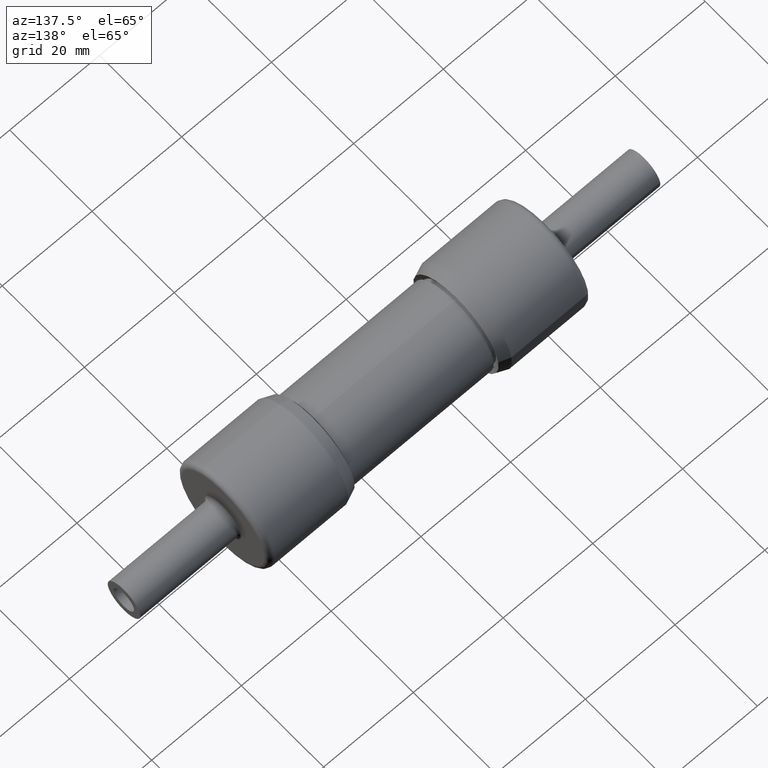
[diagram: clean part render]
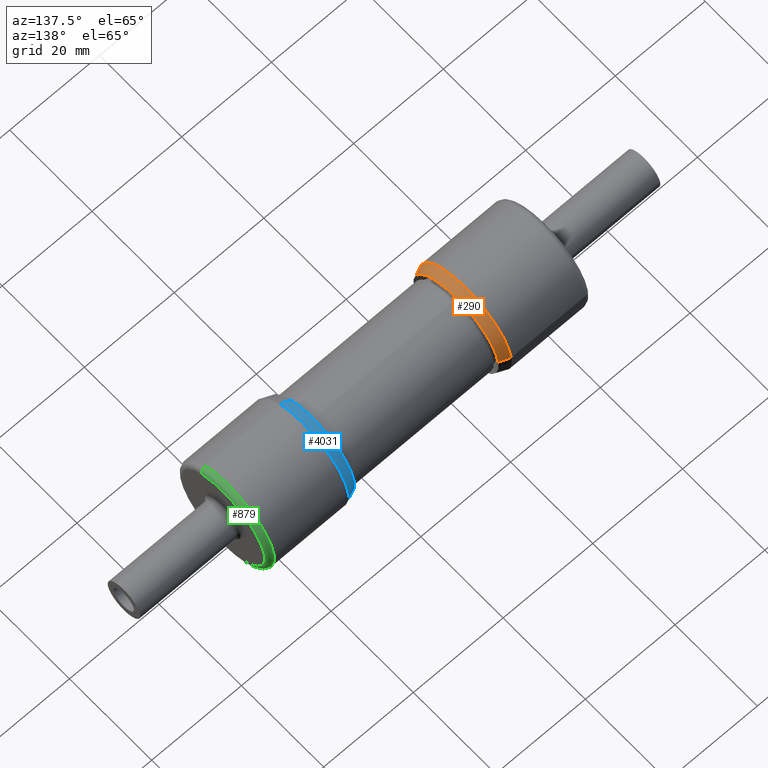
[diagram: same view with three faces highlighted in distinct colors, each labeled with its STEP entity id]
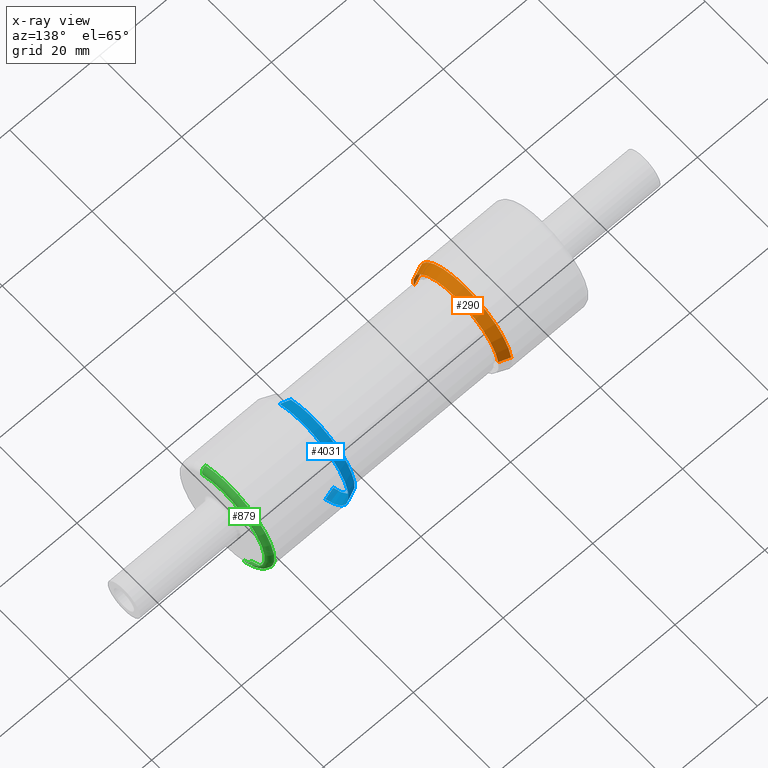
[diagram: x-ray of the same camera — body ghosted, the three highlighted faces saturated]
A machine part, auxiliary view with three faces highlighted in distinct colors.
The next image is the same camera in x-ray (body ghosted, the three faces saturated) — at least one of them is partly hidden behind the body in this view.
Their STEP definitions:

[orange] entity #290 — the highlighted conical surface has half-angle 22 deg.
#123 = VERTEX_POINT ( 'NONE', #4297 ) ;
#270 = DIRECTION ( 'NONE',  ( -1.000000000000000000, 8.586881206085282632E-17, -8.326672684688819499E-17 ) ) ;
#290 = ADVANCED_FACE ( 'NONE', ( #3023 ), #460, .T. ) ;
#340 = CARTESIAN_POINT ( 'NONE',  ( 0.4594999999999999640, 6.156793824763045811E-17, -5.970224314921710951E-17 ) ) ;
#417 = EDGE_LOOP ( 'NONE', ( #5993, #544, #3651, #2976 ) ) ;
#460 = CONICAL_SURFACE ( 'NONE', #4481, 0.4430000000000017257, 0.3839724354387570870 ) ;
#544 = ORIENTED_EDGE ( 'NONE', *, *, #4771, .T. ) ;
#688 = AXIS2_PLACEMENT_3D ( 'NONE', #1757, #4513, #6200 ) ;
#943 = LINE ( 'NONE', #5976, #2253 ) ;
#1020 = CIRCLE ( 'NONE', #688, 0.4422718385456696488 ) ;
#1407 = DIRECTION ( 'NONE',  ( 0.000000000000000000, 0.9900963576248625886, 0.1403894676176964951 ) ) ;
#1423 = DIRECTION ( 'NONE',  ( -1.000000000000000000, 8.586881206085282632E-17, -8.326672684688819499E-17 ) ) ;
#1468 = CARTESIAN_POINT ( 'NONE',  ( 0.5448230498612298689, 0.4044813424014652159, 0.05735292316118995731 ) ) ;
#1541 = CARTESIAN_POINT ( 'NONE',  ( 0.5448230498612298689, -0.4044813424014649383, -0.05735292316119009609 ) ) ;
#1551 = DIRECTION ( 'NONE',  ( -0.9271838545667852038, 0.3708966236833577956, 0.05259082021573947135 ) ) ;
#1757 = CARTESIAN_POINT ( 'NONE',  ( 0.4613022628427819183, 6.141318007829929175E-17, -5.955217462138090019E-17 ) ) ;
#2053 = VECTOR ( 'NONE', #3238, 39.37007874015748143 ) ;
#2253 = VECTOR ( 'NONE', #1551, 39.37007874015748143 ) ;
#2260 = CARTESIAN_POINT ( 'NONE',  ( 0.4613022628427819183, 0.4378917364241188270, 0.06209030795572631489 ) ) ;
#2497 = VERTEX_POINT ( 'NONE', #1541 ) ;
#2541 = EDGE_CURVE ( 'NONE', #2497, #123, #3675, .T. ) ;
#2577 = CIRCLE ( 'NONE', #6595, 0.4085272501878235429 ) ;
#2955 = EDGE_CURVE ( 'NONE', #3953, #123, #1020, .T. ) ;
#2976 = ORIENTED_EDGE ( 'NONE', *, *, #2955, .T. ) ;
#3023 = FACE_OUTER_BOUND ( 'NONE', #417, .T. ) ;
#3238 = DIRECTION ( 'NONE',  ( -0.9271838545667852038, -0.3708966236833576846, -0.05259082021573967952 ) ) ;
#3651 = ORIENTED_EDGE ( 'NONE', *, *, #6718, .T. ) ;
#3675 = LINE ( 'NONE', #7029, #2053 ) ;
#3953 = VERTEX_POINT ( 'NONE', #2260 ) ;
#4297 = CARTESIAN_POINT ( 'NONE',  ( 0.4613022628427819183, -0.4378917364241187160, -0.06209030795572648836 ) ) ;
#4481 = AXIS2_PLACEMENT_3D ( 'NONE', #340, #270, #1407 ) ;
#4513 = DIRECTION ( 'NONE',  ( 1.000000000000000000, -8.586881206085282632E-17, 8.326672684688819499E-17 ) ) ;
#4771 = EDGE_CURVE ( 'NONE', #2497, #5410, #2577, .T. ) ;
#5410 = VERTEX_POINT ( 'NONE', #1468 ) ;
#5976 = CARTESIAN_POINT ( 'NONE',  ( 0.4594999999999999640, 0.4386126864278159232, 0.06219253415463973228 ) ) ;
#5993 = ORIENTED_EDGE ( 'NONE', *, *, #2541, .F. ) ;
#6200 = DIRECTION ( 'NONE',  ( 0.000000000000000000, -0.9900963576248625886, -0.1403894676176964951 ) ) ;
#6210 = CARTESIAN_POINT ( 'NONE',  ( 0.5448230498612298689, 5.424134931463773017E-17, -5.259767206267874289E-17 ) ) ;
#6595 = AXIS2_PLACEMENT_3D ( 'NONE', #6210, #1423, #6839 ) ;
#6718 = EDGE_CURVE ( 'NONE', #5410, #3953, #943, .T. ) ;
#6839 = DIRECTION ( 'NONE',  ( 0.000000000000000000, 0.9900963576248625886, 0.1403894676176965228 ) ) ;
#7029 = CARTESIAN_POINT ( 'NONE',  ( 0.4594999999999999640, -0.4386126864278157567, -0.06219253415463990575 ) ) ;

[blue] entity #4031 — the highlighted conical surface has half-angle 22 deg.
#195 = CARTESIAN_POINT ( 'NONE',  ( 1.893499999999999961, 0.2194269814759292891, -0.3848386672364976224 ) ) ;
#307 = CARTESIAN_POINT ( 'NONE',  ( 1.893499999999999961, -3.990247870078447428E-17, -4.654610030740994808E-17 ) ) ;
#408 = FACE_OUTER_BOUND ( 'NONE', #7021, .T. ) ;
#602 = LINE ( 'NONE', #1165, #2519 ) ;
#790 = VERTEX_POINT ( 'NONE', #2236 ) ;
#829 = ORIENTED_EDGE ( 'NONE', *, *, #4075, .T. ) ;
#839 = VERTEX_POINT ( 'NONE', #2128 ) ;
#856 = CARTESIAN_POINT ( 'NONE',  ( 1.808176950138770112, -0.2023519218044595447, 0.3548918340678839378 ) ) ;
#1165 = CARTESIAN_POINT ( 'NONE',  ( 1.893499999999999961, -0.2194269814759293169, 0.3848386672364975669 ) ) ;
#1213 = VERTEX_POINT ( 'NONE', #2212 ) ;
#1508 = DIRECTION ( 'NONE',  ( 0.000000000000000000, 0.4953204999456624624, -0.8687103097889301573 ) ) ;
#1936 = VECTOR ( 'NONE', #4573, 39.37007874015748143 ) ;
#2101 = AXIS2_PLACEMENT_3D ( 'NONE', #4119, #6888, #6295 ) ;
#2128 = CARTESIAN_POINT ( 'NONE',  ( 1.891697737157218340, -0.2190663081803284062, 0.3842061058739283941 ) ) ;
#2212 = CARTESIAN_POINT ( 'NONE',  ( 1.891697737157218340, 0.2190663081803283785, -0.3842061058739285051 ) ) ;
#2236 = CARTESIAN_POINT ( 'NONE',  ( 1.808176950138770112, 0.2023519218044594892, -0.3548918340678839933 ) ) ;
#2319 = EDGE_CURVE ( 'NONE', #790, #6356, #3882, .T. ) ;
#2519 = VECTOR ( 'NONE', #5484, 39.37007874015748143 ) ;
#2529 = DIRECTION ( 'NONE',  ( 0.000000000000000000, 0.4953204999456624069, -0.8687103097889301573 ) ) ;
#2749 = EDGE_CURVE ( 'NONE', #6356, #839, #602, .T. ) ;
#3198 = EDGE_CURVE ( 'NONE', #790, #1213, #6231, .T. ) ;
#3396 = ORIENTED_EDGE ( 'NONE', *, *, #3198, .F. ) ;
#3608 = ORIENTED_EDGE ( 'NONE', *, *, #2749, .T. ) ;
#3644 = DIRECTION ( 'NONE',  ( 1.000000000000000000, 3.268530736865042060E-17, 1.387778780781465705E-17 ) ) ;
#3882 = CIRCLE ( 'NONE', #4232, 0.4085272501878235984 ) ;
#4031 = ADVANCED_FACE ( 'NONE', ( #408 ), #4614, .T. ) ;
#4075 = EDGE_CURVE ( 'NONE', #839, #1213, #6338, .T. ) ;
#4119 = CARTESIAN_POINT ( 'NONE',  ( 1.891697737157218340, -3.996138621575993307E-17, -4.657111172871592750E-17 ) ) ;
#4232 = AXIS2_PLACEMENT_3D ( 'NONE', #6921, #3644, #2529 ) ;
#4573 = DIRECTION ( 'NONE',  ( 0.9271838545667852038, 0.1855503251337138060, -0.3254246098153174560 ) ) ;
#4614 = CONICAL_SURFACE ( 'NONE', #5082, 0.4430000000000017257, 0.3839724354387570870 ) ;
#5082 = AXIS2_PLACEMENT_3D ( 'NONE', #307, #6857, #1508 ) ;
#5484 = DIRECTION ( 'NONE',  ( 0.9271838545667852038, -0.1855503251337136950, 0.3254246098153175115 ) ) ;
#6231 = LINE ( 'NONE', #195, #1936 ) ;
#6295 = DIRECTION ( 'NONE',  ( 0.000000000000000000, -0.4953204999456624624, 0.8687103097889301573 ) ) ;
#6338 = CIRCLE ( 'NONE', #2101, 0.4422718385456695933 ) ;
#6356 = VERTEX_POINT ( 'NONE', #856 ) ;
#6400 = ORIENTED_EDGE ( 'NONE', *, *, #2319, .T. ) ;
#6857 = DIRECTION ( 'NONE',  ( 1.000000000000000000, 3.268530736865042060E-17, 1.387778780781465705E-17 ) ) ;
#6888 = DIRECTION ( 'NONE',  ( -1.000000000000000000, -3.268530736865042060E-17, -1.387778780781465705E-17 ) ) ;
#6921 = CARTESIAN_POINT ( 'NONE',  ( 1.808176950138770112, -4.269128881112939156E-17, -4.773019548849963477E-17 ) ) ;
#7021 = EDGE_LOOP ( 'NONE', ( #6400, #3608, #829, #3396 ) ) ;

[green] entity #879 — the highlighted toroidal blend (fillet) surface has major radius 10.1092 mm and minor (blend) radius 1.143 mm.
#25 = DIRECTION ( 'NONE',  ( -4.133925441005864472E-18, 0.4953204999456625179, -0.8687103097889302683 ) ) ;
#157 = CARTESIAN_POINT ( 'NONE',  ( 2.543499999999999872, 0.2194269814759292614, -0.3848386672364975669 ) ) ;
#264 = CIRCLE ( 'NONE', #6814, 0.04499999999999999140 ) ;
#512 = EDGE_CURVE ( 'NONE', #735, #4399, #6436, .T. ) ;
#580 = DIRECTION ( 'NONE',  ( 1.000000000000000000, 3.268530736865042060E-17, 1.387778780781465705E-17 ) ) ;
#735 = VERTEX_POINT ( 'NONE', #1538 ) ;
#879 = ADVANCED_FACE ( 'NONE', ( #921 ), #2643, .T. ) ;
#921 = FACE_OUTER_BOUND ( 'NONE', #1616, .T. ) ;
#1388 = CARTESIAN_POINT ( 'NONE',  ( 2.588499999999999801, -0.1971375589783743720, 0.3457467032959954945 ) ) ;
#1538 = CARTESIAN_POINT ( 'NONE',  ( 2.543499999999999872, -0.2194269814759284287, 0.3848386672364960126 ) ) ;
#1616 = EDGE_LOOP ( 'NONE', ( #3126, #3981, #1715, #5401 ) ) ;
#1676 = AXIS2_PLACEMENT_3D ( 'NONE', #5867, #4225, #3794 ) ;
#1715 = ORIENTED_EDGE ( 'NONE', *, *, #5515, .F. ) ;
#2024 = DIRECTION ( 'NONE',  ( 3.526801628487328882E-17, -0.8687103097889302683, -0.4953204999456625179 ) ) ;
#2213 = CARTESIAN_POINT ( 'NONE',  ( 2.543499999999999872, -0.1971375589783743720, 0.3457467032959954945 ) ) ;
#2643 = TOROIDAL_SURFACE ( 'NONE', #6667, 0.3980000000000000204, 0.04499999999999999833 ) ;
#2834 = CARTESIAN_POINT ( 'NONE',  ( 2.543499999999999872, -1.865702891116162632E-17, -3.752553823233013334E-17 ) ) ;
#3126 = ORIENTED_EDGE ( 'NONE', *, *, #6838, .T. ) ;
#3194 = DIRECTION ( 'NONE',  ( 0.000000000000000000, 0.4953204999456625179, -0.8687103097889300463 ) ) ;
#3794 = DIRECTION ( 'NONE',  ( 0.000000000000000000, 0.4953204999456624624, -0.8687103097889301573 ) ) ;
#3813 = AXIS2_PLACEMENT_3D ( 'NONE', #5925, #580, #3194 ) ;
#3981 = ORIENTED_EDGE ( 'NONE', *, *, #512, .T. ) ;
#4212 = DIRECTION ( 'NONE',  ( 0.000000000000000000, 0.4953204999456622959, -0.8687103097889301573 ) ) ;
#4225 = DIRECTION ( 'NONE',  ( 1.000000000000000000, 3.268530736865042060E-17, 1.387778780781465705E-17 ) ) ;
#4399 = VERTEX_POINT ( 'NONE', #1388 ) ;
#4434 = DIRECTION ( 'NONE',  ( -3.526801628487328266E-17, 0.8687103097889301573, 0.4953204999456622959 ) ) ;
#4442 = EDGE_CURVE ( 'NONE', #5203, #6257, #264, .T. ) ;
#4737 = CIRCLE ( 'NONE', #3813, 0.3980000000000015192 ) ;
#5061 = CARTESIAN_POINT ( 'NONE',  ( 2.588499999999999801, 0.1971375589783743720, -0.3457467032959955500 ) ) ;
#5203 = VERTEX_POINT ( 'NONE', #157 ) ;
#5338 = CIRCLE ( 'NONE', #1676, 0.4430000000000016702 ) ;
#5401 = ORIENTED_EDGE ( 'NONE', *, *, #4442, .F. ) ;
#5515 = EDGE_CURVE ( 'NONE', #6257, #4399, #4737, .T. ) ;
#5568 = DIRECTION ( 'NONE',  ( 1.000000000000000000, 3.268530736865042060E-17, 1.387778780781465705E-17 ) ) ;
#5651 = DIRECTION ( 'NONE',  ( 0.000000000000000000, -0.4953204999456622959, 0.8687103097889301573 ) ) ;
#5867 = CARTESIAN_POINT ( 'NONE',  ( 2.543499999999999872, -1.865702891116162632E-17, -3.752553823233013334E-17 ) ) ;
#5925 = CARTESIAN_POINT ( 'NONE',  ( 2.588499999999999801, -1.718619007957251097E-17, -3.690103778097871797E-17 ) ) ;
#6201 = AXIS2_PLACEMENT_3D ( 'NONE', #2213, #4434, #5651 ) ;
#6257 = VERTEX_POINT ( 'NONE', #5061 ) ;
#6436 = CIRCLE ( 'NONE', #6201, 0.04499999999999999140 ) ;
#6667 = AXIS2_PLACEMENT_3D ( 'NONE', #2834, #5568, #25 ) ;
#6814 = AXIS2_PLACEMENT_3D ( 'NONE', #6957, #2024, #4212 ) ;
#6838 = EDGE_CURVE ( 'NONE', #5203, #735, #5338, .T. ) ;
#6957 = CARTESIAN_POINT ( 'NONE',  ( 2.543499999999999872, 0.1971375589783743720, -0.3457467032959955500 ) ) ;